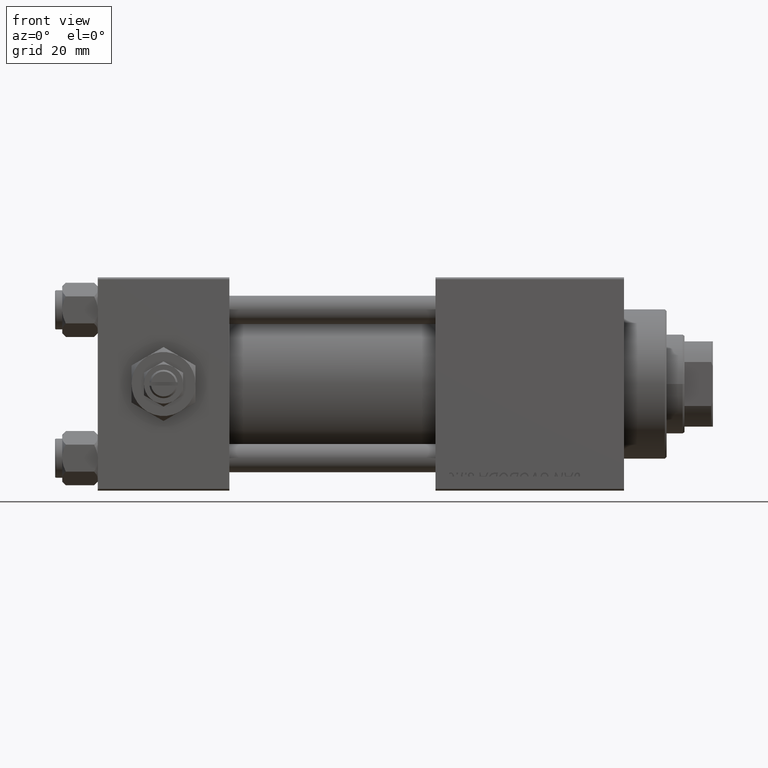
[diagram: clean part render]
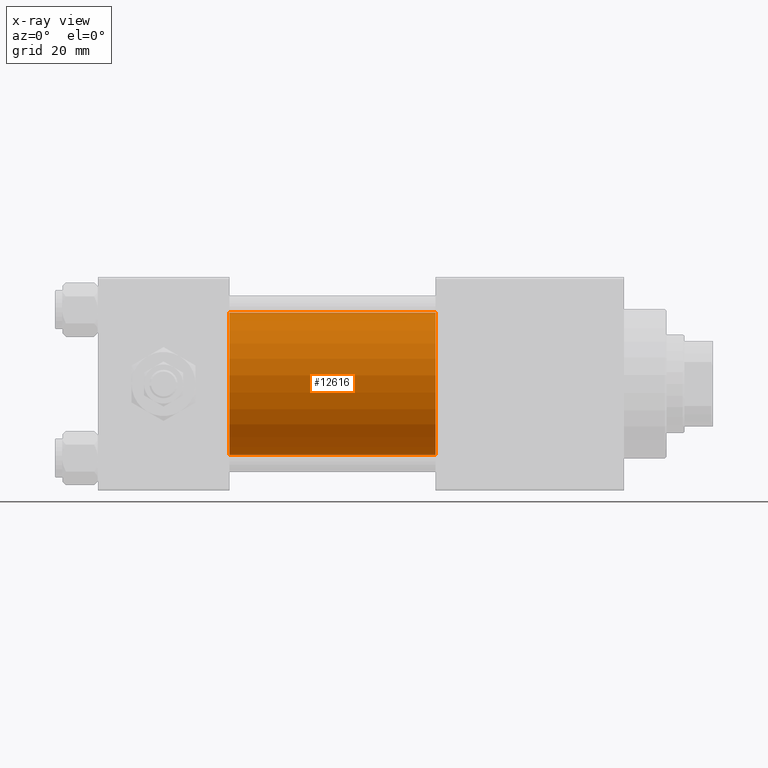
[diagram: x-ray — body ghosted, one internal face saturated and labeled with its STEP entity id]
A machine part, front view, then the same camera in x-ray: the body is ghosted and one INTERNAL B-rep face — a face not visible from any outside direction — is saturated and labeled: STEP entity #12616.
In plain terms, the highlighted cylindrical surface (partial cylindrical patch) has radius 20 mm, axis along (-1, -0, -0).
Its self-contained STEP definition (entity closure, byte-faithful):
#763 = CIRCLE ( 'NONE', #41849, 20.00000000000000000 ) ;
#2343 = CARTESIAN_POINT ( 'NONE',  ( 37.00000000000000000, -2.602085213965210642E-15, 20.00000000000000000 ) ) ;
#4058 = VERTEX_POINT ( 'NONE', #23152 ) ;
#5581 = DIRECTION ( 'NONE',  ( 1.000000000000000000, 0.000000000000000000, 0.000000000000000000 ) ) ;
#5819 = EDGE_LOOP ( 'NONE', ( #23481, #39000, #34536, #6262 ) ) ;
#5860 = CARTESIAN_POINT ( 'NONE',  ( 95.00000000000000000, -1.527916156705046464E-16, -20.00000000000000000 ) ) ;
#6262 = ORIENTED_EDGE ( 'NONE', *, *, #46964, .F. ) ;
#9601 = VECTOR ( 'NONE', #13316, 1000.000000000000000 ) ;
#10007 = DIRECTION ( 'NONE',  ( 0.000000000000000000, 0.000000000000000000, 1.000000000000000000 ) ) ;
#12616 = ADVANCED_FACE ( 'NONE', ( #49926 ), #13965, .F. ) ;
#13316 = DIRECTION ( 'NONE',  ( -1.000000000000000000, -0.000000000000000000, -0.000000000000000000 ) ) ;
#13965 = CYLINDRICAL_SURFACE ( 'NONE', #30608, 20.00000000000000000 ) ;
#14025 = LINE ( 'NONE', #5860, #30331 ) ;
#15104 = DIRECTION ( 'NONE',  ( 1.000000000000000000, 0.000000000000000000, 0.000000000000000000 ) ) ;
#16842 = CIRCLE ( 'NONE', #46198, 20.00000000000000000 ) ;
#17158 = DIRECTION ( 'NONE',  ( 0.000000000000000000, 0.000000000000000000, -1.000000000000000000 ) ) ;
#18692 = VERTEX_POINT ( 'NONE', #24417 ) ;
#19553 = DIRECTION ( 'NONE',  ( 0.000000000000000000, 0.000000000000000000, -1.000000000000000000 ) ) ;
#23152 = CARTESIAN_POINT ( 'NONE',  ( 37.00000000000000000, -1.527916156705046464E-16, -20.00000000000000000 ) ) ;
#23481 = ORIENTED_EDGE ( 'NONE', *, *, #35899, .T. ) ;
#24417 = CARTESIAN_POINT ( 'NONE',  ( 95.00000000000000000, -2.602085213965210642E-15, 20.00000000000000000 ) ) ;
#27961 = EDGE_CURVE ( 'NONE', #38386, #4058, #763, .T. ) ;
#29960 = DIRECTION ( 'NONE',  ( -1.000000000000000000, -0.000000000000000000, -0.000000000000000000 ) ) ;
#30331 = VECTOR ( 'NONE', #42628, 1000.000000000000000 ) ;
#30608 = AXIS2_PLACEMENT_3D ( 'NONE', #42038, #29960, #10007 ) ;
#32900 = CARTESIAN_POINT ( 'NONE',  ( 95.00000000000000000, -2.602085213965210642E-15, 0.000000000000000000 ) ) ;
#34206 = EDGE_CURVE ( 'NONE', #37373, #4058, #14025, .T. ) ;
#34536 = ORIENTED_EDGE ( 'NONE', *, *, #27961, .F. ) ;
#35899 = EDGE_CURVE ( 'NONE', #18692, #37373, #16842, .T. ) ;
#36939 = LINE ( 'NONE', #49286, #9601 ) ;
#37373 = VERTEX_POINT ( 'NONE', #45322 ) ;
#38386 = VERTEX_POINT ( 'NONE', #2343 ) ;
#39000 = ORIENTED_EDGE ( 'NONE', *, *, #34206, .T. ) ;
#41849 = AXIS2_PLACEMENT_3D ( 'NONE', #51073, #15104, #19553 ) ;
#42038 = CARTESIAN_POINT ( 'NONE',  ( 95.00000000000000000, -2.602085213965210642E-15, 0.000000000000000000 ) ) ;
#42628 = DIRECTION ( 'NONE',  ( -1.000000000000000000, -0.000000000000000000, -0.000000000000000000 ) ) ;
#45322 = CARTESIAN_POINT ( 'NONE',  ( 95.00000000000000000, -1.527916156705046464E-16, -20.00000000000000000 ) ) ;
#46198 = AXIS2_PLACEMENT_3D ( 'NONE', #32900, #5581, #17158 ) ;
#46964 = EDGE_CURVE ( 'NONE', #18692, #38386, #36939, .T. ) ;
#49286 = CARTESIAN_POINT ( 'NONE',  ( 95.00000000000000000, -2.602085213965210642E-15, 20.00000000000000000 ) ) ;
#49926 = FACE_OUTER_BOUND ( 'NONE', #5819, .T. ) ;
#51073 = CARTESIAN_POINT ( 'NONE',  ( 37.00000000000000000, -2.602085213965210642E-15, 0.000000000000000000 ) ) ;